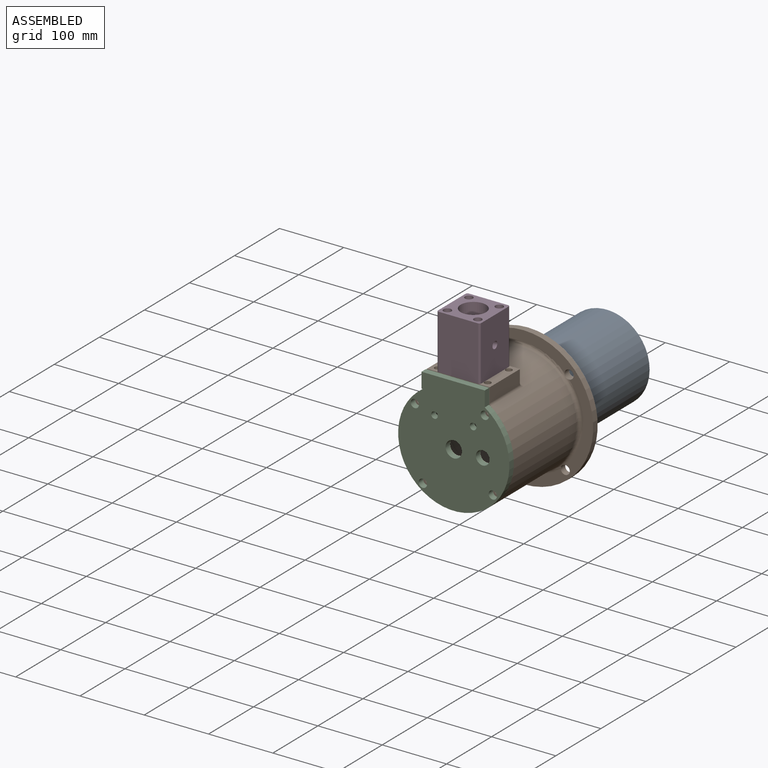
[diagram: assembled view]
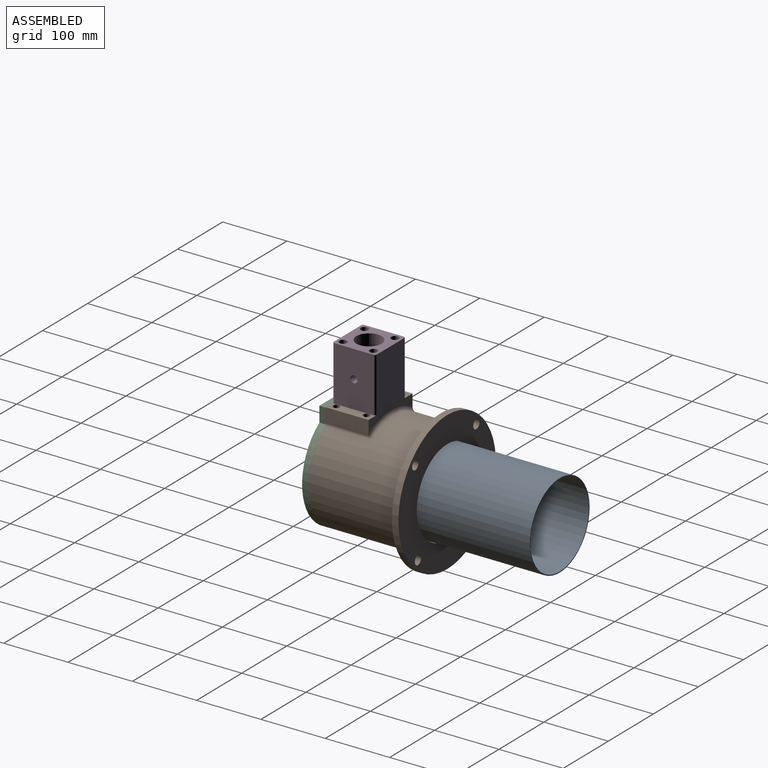
[diagram: assembled view, second angle]
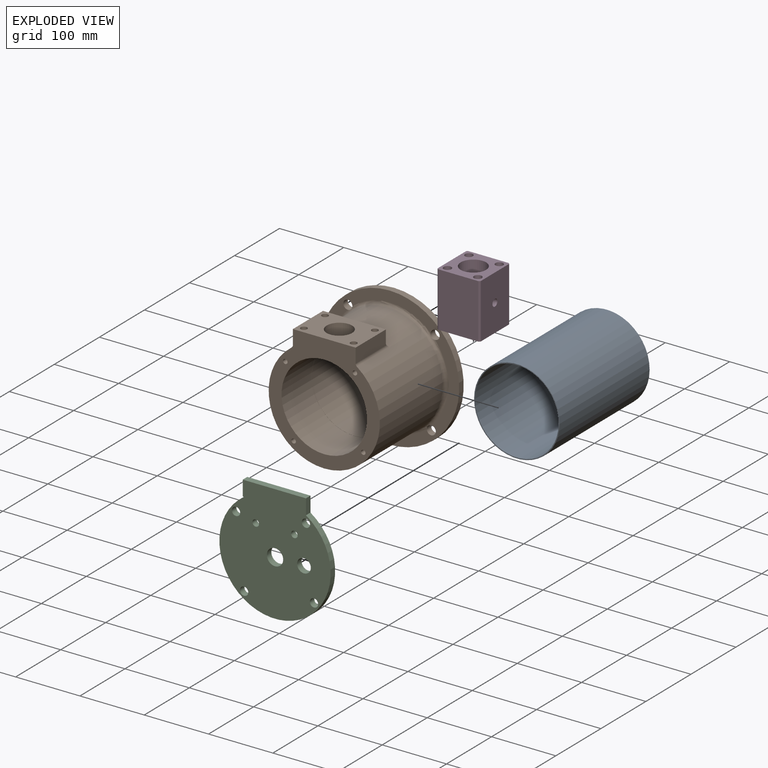
[diagram: exploded view]
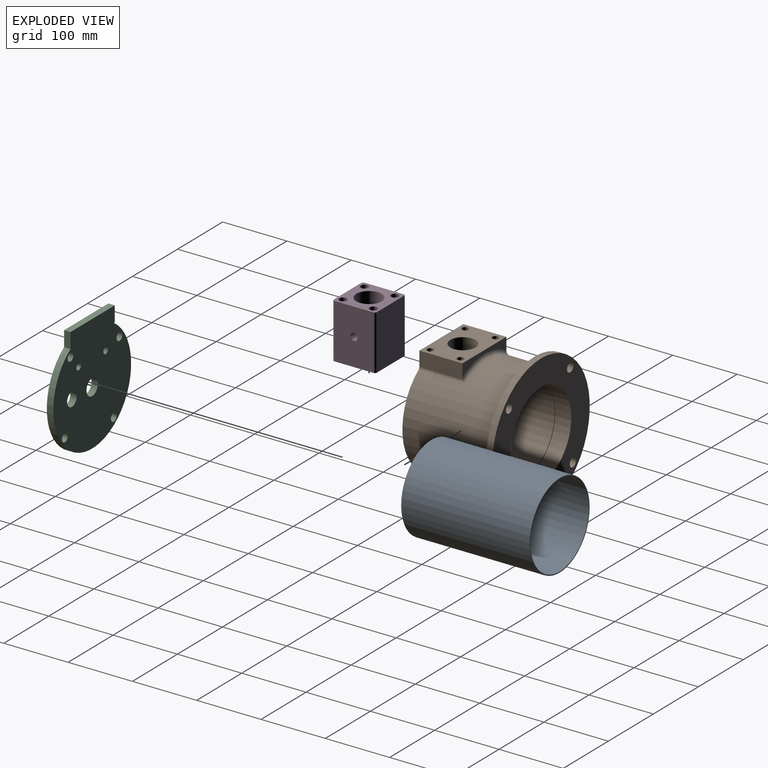
[diagram: exploded view, second angle]
ASSEMBLY  parts=4 mates=3
PART A: 4 faces, bbox 132.9x132.9x200 mm
  f0: cylinder r=65mm len=200mm, axis (0,0,-1), area 81681.4mm2, adj f2,f3
  f1: cylinder r=66.45mm len=200mm, axis (0,0,-1), area 83503.5mm2, adj f2,f3
  f2: plane 132.9x132.9mm, normal (0,0,1), area 598.8mm2, adj f0,f1
  f3: plane 132.9x132.9mm, normal (0,0,-1), area 598.8mm2, adj f0,f1
PART B: 35 faces, bbox 216.6x155.1x216.6 mm
  f0: cylinder r=66.3mm len=132.61mm, axis (0,-1,0), area 26246.2mm2, adj f8,f34
  f1: plane 67.94x22.46mm, normal (1,0,0), area 1502.3mm2, adj f2,f6,f7,f14,f16
  f2: plane 97.64x67mm, normal (0,0,1), area 5002.3mm2, adj f1,f3,f6,f7,f9,f17,f18,f19
  f3: plane 67.94x22.46mm, normal (-1,0,0), area 1502.3mm2, adj f2,f6,f7,f15,f16
  f4: cylinder r=86.5mm len=173mm, axis (0,-1,0), area 68256.7mm2, adj f7,f13,f14,f15,f16
  f5: cylinder r=66.5mm len=133mm, axis (0,-1,0), area 26362.9mm2, adj f7,f8,f9,f17,f18,f19,f20
  f6: plane 97.64x19.02mm, normal (0,1,0), area 923.2mm2, adj f1,f2,f3,f16
  f7: plane 182.91x173mm, normal (0,-1,0), area 10901.3mm2, adj f1,f2,f3,f4,f5,f14,f15,f21
  f8: plane 133x133mm, normal (0,-1,0), area 81.4mm2, adj f0,f5
  f9: cylinder r=19.75mm len=39.5mm, axis (0,0,1), area 3896mm2, adj f2,f5
  f10: cylinder r=108.29mm len=216.59mm, axis (0,-1,0), area 6804.2mm2, adj f11,f12
  f11: plane 216.59x216.59mm, normal (0,1,0), area 21912.9mm2, adj f10,f29,f30,f31,f32,f33
  f12: plane 216.59x216.59mm, normal (0,-1,0), area 9995.2mm2, adj f10,f13,f29,f30,f31,f32
  f13: torus R=91.5mm, axis (0,1,0), area 4285.4mm2, adj f4,f12,f29,f30,f31,f32
  f14: cylinder r=5mm len=72mm, axis (0,-1,0), area 328.6mm2, adj f1,f4,f7,f16
  f15: cylinder r=5mm len=72mm, axis (0,-1,0), area 328.6mm2, adj f3,f4,f7,f16
  f16: torus R=91.5mm, axis (0,-1,0), area 820.8mm2, adj f1,f3,f4,f6,f14,f15
  f17: cylinder r=5mm len=46.33mm, axis (0,0,1), area 1336.4mm2, adj f2,f5
  f18: cylinder r=5mm len=46.32mm, axis (0,0,1), area 1336.4mm2, adj f2,f5
  f19: cylinder r=5mm len=46.33mm, axis (0,0,1), area 1336.4mm2, adj f2,f5
  f20: cylinder r=5mm len=46.32mm, axis (0,0,1), area 1336.4mm2, adj f2,f5
  f21: cylinder r=3.5mm len=40mm, axis (0,-1,0), area 879.6mm2, adj f7,f22
  f22: plane 7x7mm, normal (0,-1,0), area 38.5mm2, adj f21
  f23: cylinder r=3.5mm len=40mm, axis (0,-1,0), area 879.6mm2, adj f7,f24
  f24: plane 7x7mm, normal (0,-1,0), area 38.5mm2, adj f23
  f25: cylinder r=3.5mm len=40mm, axis (0,-1,0), area 879.6mm2, adj f7,f26
  f26: plane 7x7mm, normal (0,-1,0), area 38.5mm2, adj f25
  f27: cylinder r=3.5mm len=40mm, axis (0,-1,0), area 879.6mm2, adj f7,f28
  f28: plane 7x7mm, normal (0,-1,0), area 38.5mm2, adj f27
  f29: cylinder r=7mm len=14mm, axis (0,1,0), area 443.7mm2, adj f11,f12,f13
  f30: cylinder r=7mm len=14mm, axis (0,1,0), area 443.7mm2, adj f11,f12,f13
  f31: cylinder r=7mm len=14mm, axis (0,1,0), area 443.7mm2, adj f11,f12,f13
  f32: cylinder r=7mm len=14mm, axis (0,1,0), area 443.7mm2, adj f11,f12,f13
  f33: cylinder r=67.5mm len=135mm, axis (0,1,0), area 10602.9mm2, adj f11,f34
  f34: plane 135x135mm, normal (0,1,0), area 502.3mm2, adj f0,f33
PART C: 15 faces, bbox 173x10x182.1 mm
  f0: plane 98.37x10mm, normal (0,0,1), area 983.7mm2, adj f1,f4,f5,f6
  f1: plane 23.77x10mm, normal (-1,0,0), area 237.7mm2, adj f0,f2,f5,f6
  f2: plane 10x2.08mm, normal (0,0,-1), area 20.7mm2, adj f1,f3,f5,f6
  f3: cylinder r=86.5mm len=173mm, axis (0,1,0), area 4413.8mm2, adj f2,f4,f5,f6
  f4: plane 23.77x10mm, normal (1,0,0), area 237.7mm2, adj f0,f3,f5,f6
  f5: plane 182.13x173mm, normal (0,-1,0), area 23344.2mm2, adj f0,f1,f2,f3,f4,f7,f8,f9
  f6: plane 182.13x173mm, normal (0,1,0), area 23344.2mm2, adj f0,f1,f2,f3,f4,f7,f8,f9
  f7: cylinder r=6.41mm len=12.83mm, axis (0,1,0), area 403.1mm2, adj f5,f6
  f8: cylinder r=6.41mm len=12.83mm, axis (0,1,0), area 403.1mm2, adj f5,f6
  f9: cylinder r=6.41mm len=12.83mm, axis (0,1,0), area 403.1mm2, adj f5,f6
  f10: cylinder r=6.41mm len=12.83mm, axis (0,1,0), area 403.1mm2, adj f5,f6
  f11: cylinder r=12.7mm len=25.4mm, axis (0,-1,0), area 798mm2, adj f5,f6
  f12: cylinder r=5.1mm len=10.2mm, axis (0,-1,0), area 320.4mm2, adj f5,f6
  f13: cylinder r=5.1mm len=10.2mm, axis (0,-1,0), area 320.4mm2, adj f5,f6
  f14: cylinder r=10.65mm len=21.3mm, axis (0,-1,0), area 669.2mm2, adj f5,f6
PART D: 41 faces, bbox 67x67x85 mm
  f0: cylinder r=5mm len=65mm, axis (0,0,1), area 2042mm2, adj f31,f33
  f1: cylinder r=5mm len=65mm, axis (0,0,1), area 2042mm2, adj f29,f39
  f2: cylinder r=5mm len=65mm, axis (0,0,1), area 2042mm2, adj f27,f37
  f3: cylinder r=5mm len=65mm, axis (0,0,1), area 2042mm2, adj f25,f35
  f4: cylinder r=5.05mm len=10.1mm, axis (1,0,0), area 129.4mm2, adj f13,f23
  f5: cylinder r=5.05mm len=10.1mm, axis (1,0,0), area 129.4mm2, adj f13,f21
  f6: plane 47.7x47.7mm, normal (0,0,1), area 561.9mm2, adj f13,f18
  f7: plane 85x61mm, normal (0,-1,0), area 5185mm2, adj f11,f12,f14,f17
  f8: plane 85x61mm, normal (1,0,0), area 5090mm2, adj f11,f12,f14,f15,f22
  f9: plane 85x61mm, normal (0,1,0), area 5185mm2, adj f11,f12,f15,f16
  f10: plane 85x61mm, normal (-1,0,0), area 5090mm2, adj f11,f12,f16,f17,f24
  f11: plane 67x67mm, normal (0,0,1), area 2065.4mm2, adj f7,f8,f9,f10,f14,f15,f16,f17
  f12: plane 67x67mm, normal (0,0,-1), area 2803.5mm2, adj f7,f8,f9,f10,f13,f14,f15,f16
  f13: cylinder r=19.75mm len=85mm, axis (0,0,1), area 10386.1mm2, adj f4,f5,f6,f12
  f14: cylinder r=3mm len=85mm, axis (0,0,1), area 400.6mm2, adj f7,f8,f11,f12
  f15: cylinder r=3mm len=85mm, axis (0,0,-1), area 400.6mm2, adj f8,f9,f11,f12
  f16: cylinder r=3mm len=85mm, axis (0,0,1), area 400.6mm2, adj f9,f10,f11,f12
  f17: cylinder r=3mm len=85mm, axis (0,0,-1), area 400.6mm2, adj f7,f10,f11,f12
  f18: cylinder r=23.85mm len=47.7mm, axis (0,0,1), area 299.7mm2, adj f6,f20
  f19: cylinder r=25mm len=50mm, axis (0,0,1), area 314.2mm2, adj f11,f20
  f20: plane 50x50mm, normal (0,0,1), area 176.2mm2, adj f18,f19
  f21: plane 11x11mm, normal (1,0,0), area 14.9mm2, adj f5,f22
  f22: cylinder r=5.5mm len=11mm, axis (1,0,0), area 345.6mm2, adj f8,f21
  f23: plane 11x11mm, normal (-1,0,0), area 14.9mm2, adj f4,f24
  f24: cylinder r=5.5mm len=11mm, axis (-1,0,0), area 345.6mm2, adj f10,f23
  f25: plane 12x12mm, normal (0,0,1), area 34.6mm2, adj f3,f26
  f26: cylinder r=6mm len=12mm, axis (0,0,1), area 377mm2, adj f11,f25
  f27: plane 12x12mm, normal (0,0,1), area 34.6mm2, adj f2,f28
  f28: cylinder r=6mm len=12mm, axis (0,0,1), area 377mm2, adj f11,f27
  f29: plane 12x12mm, normal (0,0,1), area 34.6mm2, adj f1,f30
  f30: cylinder r=6mm len=12mm, axis (0,0,1), area 377mm2, adj f11,f29
  f31: plane 12x12mm, normal (0,0,1), area 34.6mm2, adj f0,f32
  f32: cylinder r=6mm len=12mm, axis (0,0,1), area 377mm2, adj f11,f31
  f33: plane 12x12mm, normal (0,0,-1), area 34.6mm2, adj f0,f34
  f34: cylinder r=6mm len=12mm, axis (0,0,-1), area 377mm2, adj f12,f33
  f35: plane 12x12mm, normal (0,0,-1), area 34.6mm2, adj f3,f36
  f36: cylinder r=6mm len=12mm, axis (0,0,-1), area 377mm2, adj f12,f35
  f37: plane 12x12mm, normal (0,0,-1), area 34.6mm2, adj f2,f38
  f38: cylinder r=6mm len=12mm, axis (0,0,-1), area 377mm2, adj f12,f37
  f39: plane 12x12mm, normal (0,0,-1), area 34.6mm2, adj f1,f40
  f40: cylinder r=6mm len=12mm, axis (0,0,-1), area 377mm2, adj f12,f39
PLACE A rot(axis=(-1,0,0),90deg) t=(6.15,118.7,67.72)mm
PLACE B t=(6.15,-11.3,67.72)mm
PLACE C t=(6.15,13.7,67.72)mm
PLACE D rot(axis=(1,0,0),180deg) t=(6.15,22.2,249.12)mm
MATE planar D.f13 <-> B.f9  axis (0,0,-1) through (6.15,22.2,164.12)mm
MATE planar C.f3 <-> B.f4  axis (0,1,0) through (6.15,-11.3,67.72)mm
MATE planar A.f0 <-> B.f0  axis (0,-1,0) through (6.15,118.7,67.72)mm
